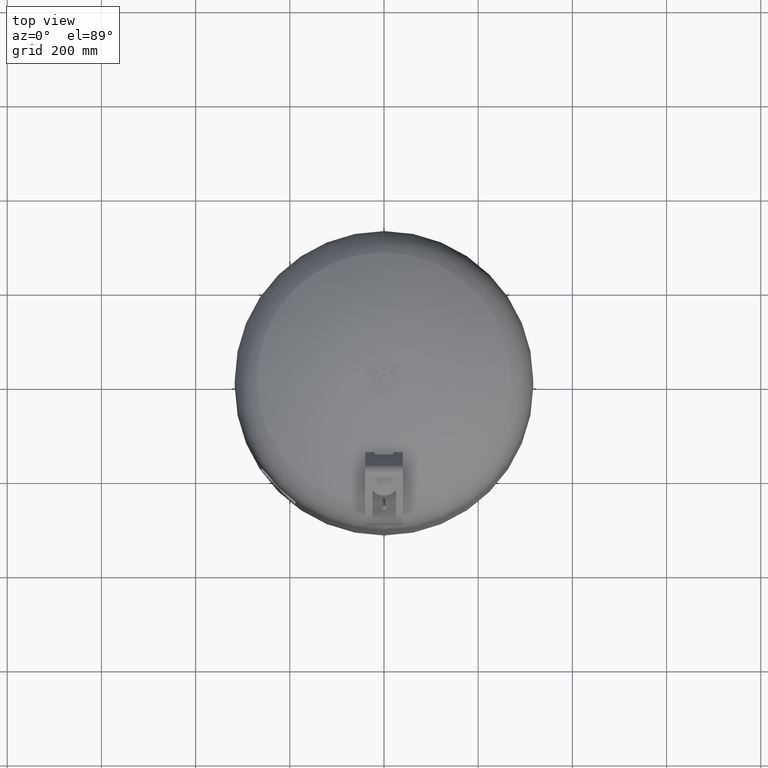
[diagram: clean part render]
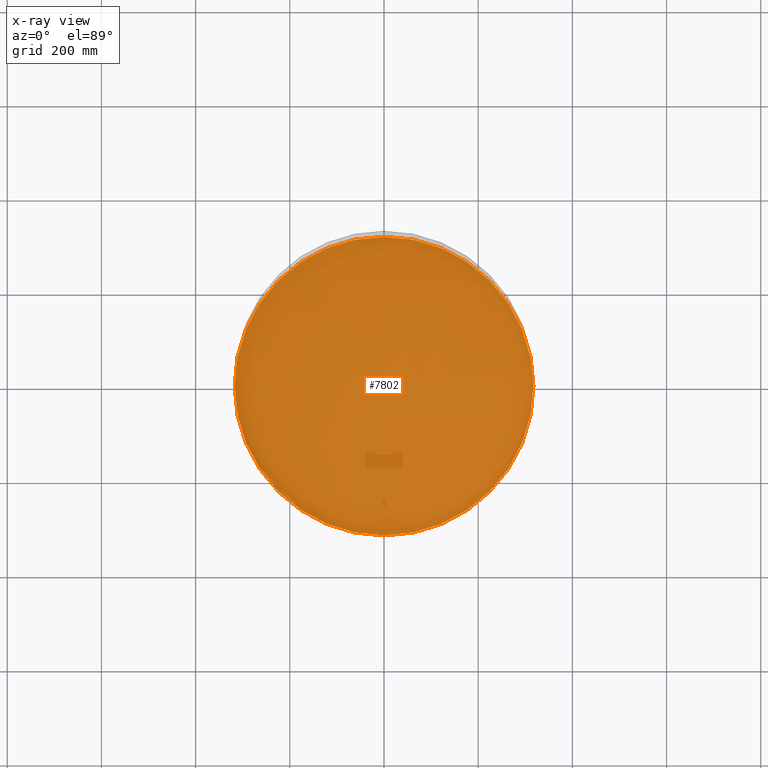
[diagram: x-ray — body ghosted, one internal face saturated and labeled with its STEP entity id]
A machine part, top view, then the same camera in x-ray: the body is ghosted and one INTERNAL B-rep face — a face not visible from any outside direction — is saturated and labeled: STEP entity #7802.
In plain terms, the highlighted planar face has unit normal (0, 0, 1).
Its self-contained STEP definition (entity closure, byte-faithful):
#7640=CARTESIAN_POINT('',(-317.0,-2.975892E-014,359.999999999999890));
#7641=VERTEX_POINT('',#7640);
#7650=CARTESIAN_POINT('',(317.0,9.061104E-015,359.999999999999940));
#7651=VERTEX_POINT('',#7650);
#7652=CARTESIAN_POINT('',(-1.558411E-014,-2.975892E-014,359.999999999999890));
#7653=DIRECTION('',(0.0,0.0,1.0));
#7654=DIRECTION('',(-1.0,0.0,0.0));
#7655=AXIS2_PLACEMENT_3D('',#7652,#7653,#7654);
#7656=CIRCLE('',#7655,317.0);
#7657=EDGE_CURVE('',#7651,#7641,#7656,.T.);
#7783=CARTESIAN_POINT('',(-1.558411E-014,-2.975892E-014,359.999999999999890));
#7784=DIRECTION('',(0.0,0.0,1.0));
#7785=DIRECTION('',(-1.0,0.0,0.0));
#7786=AXIS2_PLACEMENT_3D('',#7783,#7784,#7785);
#7787=CIRCLE('',#7786,317.0);
#7788=EDGE_CURVE('',#7641,#7651,#7787,.T.);
#7793=CARTESIAN_POINT('',(-158.500000000000000,-2.975892E-014,359.999999999999940));
#7794=DIRECTION('',(0.0,0.0,1.0));
#7795=DIRECTION('',(0.0,-1.0,0.0));
#7796=AXIS2_PLACEMENT_3D('',#7793,#7794,#7795);
#7797=PLANE('',#7796);
#7798=ORIENTED_EDGE('',*,*,#7788,.T.);
#7799=ORIENTED_EDGE('',*,*,#7657,.T.);
#7800=EDGE_LOOP('',(#7798,#7799));
#7801=FACE_OUTER_BOUND('',#7800,.T.);
#7802=ADVANCED_FACE('',(#7801),#7797,.T.);